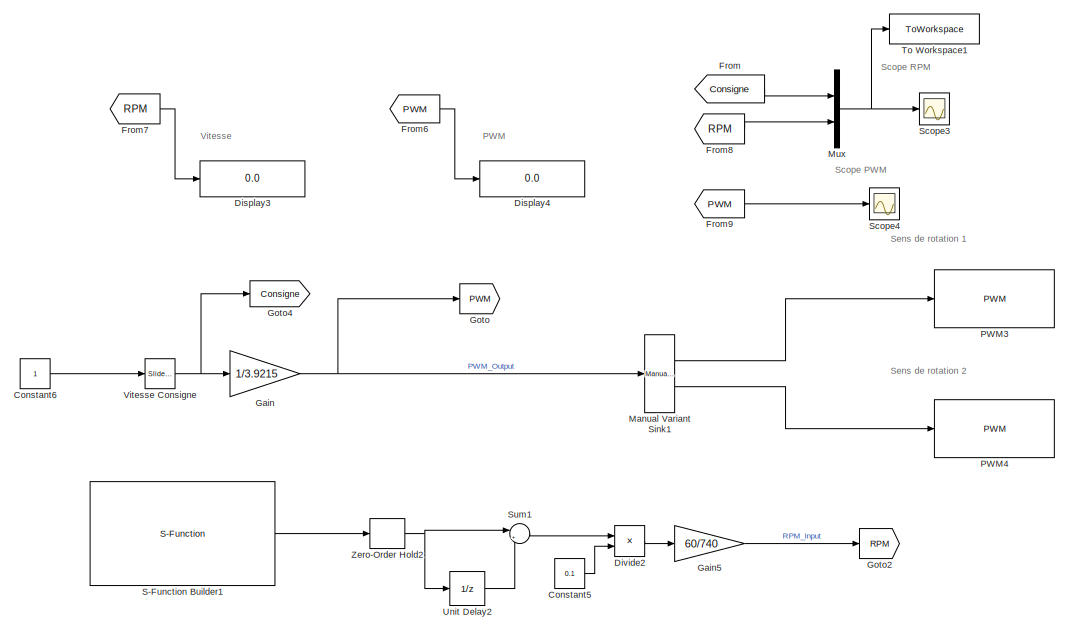
[diagram: root canvas - part 1/2, top left region]
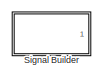
[diagram: root canvas - part 2/2, bottom right region]
MODEL slx_3abc8e0a42c9
KIND model
CONFIG AbsTol = auto
CONFIG EnableMultiTasking = on
CONFIG FixedStep = 0.1
CONFIG InitFcn = Ts=0.1;
CONFIG MaxStep = auto
CONFIG MinStep = auto
CONFIG RelTol = 1e-3
CONFIG SampleTimeConstraint = Unconstrained
CONFIG SolverName = FixedStepAuto
CONFIG StartTime = 0.0
CONFIG StopTime = inf
BLOCK [Constant] Constant5
  SampleTime = 0.1
  Value = 0.1
BLOCK [Constant] Constant6
BLOCK [Display] Display3
  Decimation = 1
  Ports = [1]
BLOCK [Display] Display4
  Decimation = 1
  Ports = [1]
BLOCK [Product] Divide2
  Inputs = */
  Ports = [2, 1]
BLOCK [From] From
  GotoTag = Consigne
BLOCK [From] From6
  GotoTag = PWM
BLOCK [From] From7
  GotoTag = RPM
BLOCK [From] From8
  GotoTag = RPM
BLOCK [From] From9
  GotoTag = PWM
BLOCK [Gain] Gain
  Gain = 1/3.9215
BLOCK [Gain] Gain5
  Gain = 60/740
BLOCK [Goto] Goto
  GotoTag = PWM
BLOCK [Goto] Goto2
  GotoTag = RPM
BLOCK [Goto] Goto4
  GotoTag = Consigne
BLOCK [Reference] Manual Variant Sink1  REF=simulink/Signal
Routing/Manual
Variant Sink
  Ports = [1, 2]
  SourceBlock = simulink/Signal\nRouting/Manual\nVariant Sink
  SourceProductBaseCode = SL
  SourceType = ManualVariantSink
BLOCK [Mux] Mux
  DisplayOption = bar
  Inputs = 2
  Ports = [2, 1]
BLOCK [Reference] PWM3  REF=arduinolib/PWM
  Ports = [1]
  SourceBlock = arduinolib/PWM
  SourceProductBaseCode = ARDUINO
  SourceType = Arduino PWM
BLOCK [Reference] PWM4  REF=arduinolib/PWM
  Ports = [1]
  SourceBlock = arduinolib/PWM
  SourceProductBaseCode = ARDUINO
  SourceType = Arduino PWM
BLOCK [S-Function] S-Function Builder1
  CopyFcn = set_param(gcbh,'LinkStatus','none')
  EnableBusSupport = off
  FunctionName = encoder
  InitFcn = try, set_param(gcb,'FunctionName','encoder'), end
  OpenFcn = sfunctionwizard(gcbh)
  Parameters = int8(0),int8(2),int8(3)
  Ports = [0, 1]
  PreSaveFcn = try, set_param(gcb,'FunctionName','encoder'), end
  SFcnIsStateOwnerBlock = off
  SFunctionDeploymentMode = off
  SFunctionModules = encoder_wrapper
BLOCK [Scope] Scope3
  Floating = off
  NumInputPorts = 1
  Ports = [1]
  ScopeSpecificationString = Simulink.scopes.TimeScopeBlockCfg('CurrentConfiguration', extmgr.ConfigurationSet(extmgr.Configuration('Core','General UI',true),extmgr.Configuration('Core','Source UI',true),extmgr.Configuration('Sources','WiredSimulink',true,'DataLoggingVariableName','ScopeData1'),extmgr.Configuration('Visuals','Time Domain',true,'SerializedDisplays',{struct('MinYLimReal','-55.73067','MaxYLimReal','509.89863','Y...<+1761ch>
BLOCK [Scope] Scope4
  Floating = off
  NumInputPorts = 1
  Ports = [1]
  ScopeSpecificationString = Simulink.scopes.TimeScopeBlockCfg('CurrentConfiguration', extmgr.ConfigurationSet(extmgr.Configuration('Core','General UI',true),extmgr.Configuration('Core','Source UI',true),extmgr.Configuration('Sources','WiredSimulink',true,'DataLoggingVariableName','ScopeData2'),extmgr.Configuration('Visuals','Time Domain',true,'SerializedDisplays',{struct('MinYLimReal','-5','MaxYLimReal','255','YLabelReal',''...<+1737ch>
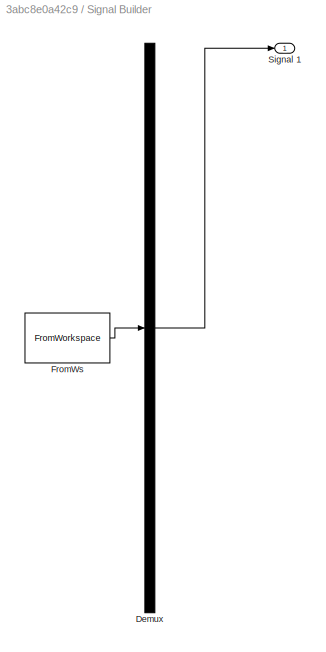
BLOCK [SubSystem] Signal Builder
  ClipboardFcn = sigbuilder_block('clipboard');
  CloseFcn = sigbuilder_block('close');
  ContinueFcn = sigbuilder_block('continue');
  CopyFcn = sigbuilder_block('copy');
  DeleteFcn = sigbuilder_block('delete');
  IOType = siggen
  LoadFcn = sigbuilder_block('load');
  MaskHideContents = on
  ModelCloseFcn = sigbuilder_block('modelClose');
  NameChangeFcn = sigbuilder_block('namechange');
  OpenFcn = sigbuilder_block('open',[437.6 199.2 550.4 400 ]);
  PauseFcn = sigbuilder_block('pause');
  Ports = [0, 1]
  PreSaveFcn = sigbuilder_block('preSave');
  RequestExecContextInheritance = off
  StartFcn = sigbuilder_block('start');
  StopFcn = sigbuilder_block('stop');
  Tag = STV Subsys
BLOCK [Demux] Signal Builder/Demux
  DisplayOption = none
  Outputs = 1
  Ports = [1, 1]
  Tag = STV Demux
BLOCK [FromWorkspace] Signal Builder/FromWs
  Tag = STV FromWs
  VariableName = tuvar
BLOCK [Outport] Signal Builder/Signal 1
  Tag = STV Outport
BLOCK [Sum] Sum1
  Inputs = |+-
  Ports = [2, 1]
BLOCK [ToWorkspace] To Workspace1
  FixptAsFi = on
  MaxDataPoints = inf
  Ports = [1]
  SampleTime = -1
  SaveFormat = Timeseries
  VariableName = vitesse1
BLOCK [UnitDelay] Unit Delay2
  HasFrameUpgradeWarning = on
  SampleTime = -1
BLOCK [Reference] Vitesse Consigne   REF=simulink/Math
Operations/Slider
Gain
  Ports = [1, 1]
  SourceBlock = simulink/Math\nOperations/Slider\nGain
  SourceProductBaseCode = SL
  SourceType = Slider Gain
BLOCK [ZeroOrderHold] Zero-Order Hold2
  SampleTime = 0.1
ANNOTATION (root): PWM
ANNOTATION (root): Scope PWM
ANNOTATION (root): Scope RPM
ANNOTATION (root): Sens de rotation 1
ANNOTATION (root): Sens de rotation 2
ANNOTATION (root): Vitesse
LINE Constant5:1 -> Divide2:2
LINE Constant6:1 -> Vitesse Consigne :1
LINE Divide2:1 -> Gain5:1
LINE From6:1 -> Display4:1
LINE From7:1 -> Display3:1
LINE From8:1 -> Mux:2
LINE From9:1 -> Scope4:1
LINE From:1 -> Mux:1
LINE Gain5:1 -> Goto2:1
NET Gain:1 -> Goto:1, Manual Variant Sink1:1
LINE Manual Variant Sink1:1 -> PWM3:1
LINE Manual Variant Sink1:2 -> PWM4:1
NET Mux:1 -> Scope3:1, To Workspace1:1
LINE S-Function Builder1:1 -> Zero-Order Hold2:1
LINE Sum1:1 -> Divide2:1
LINE Unit Delay2:1 -> Sum1:2
NET Vitesse Consigne :1 -> Gain:1, Goto4:1
NET Zero-Order Hold2:1 -> Sum1:1, Unit Delay2:1
note: NET lines group one-source signal fan-out (src -> all destinations, sorted); 1:1 wires keep LINE
